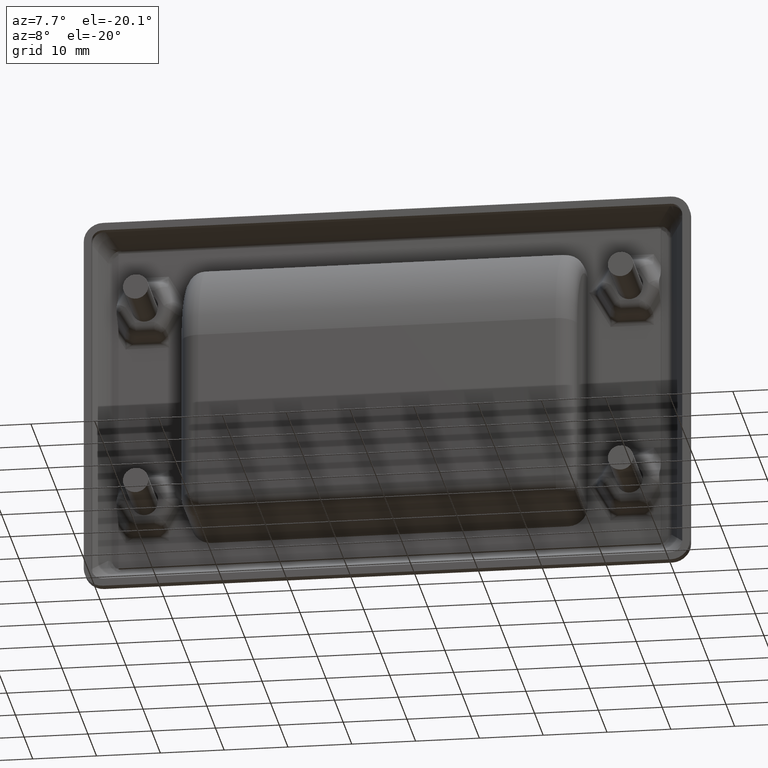
[diagram: clean part render]
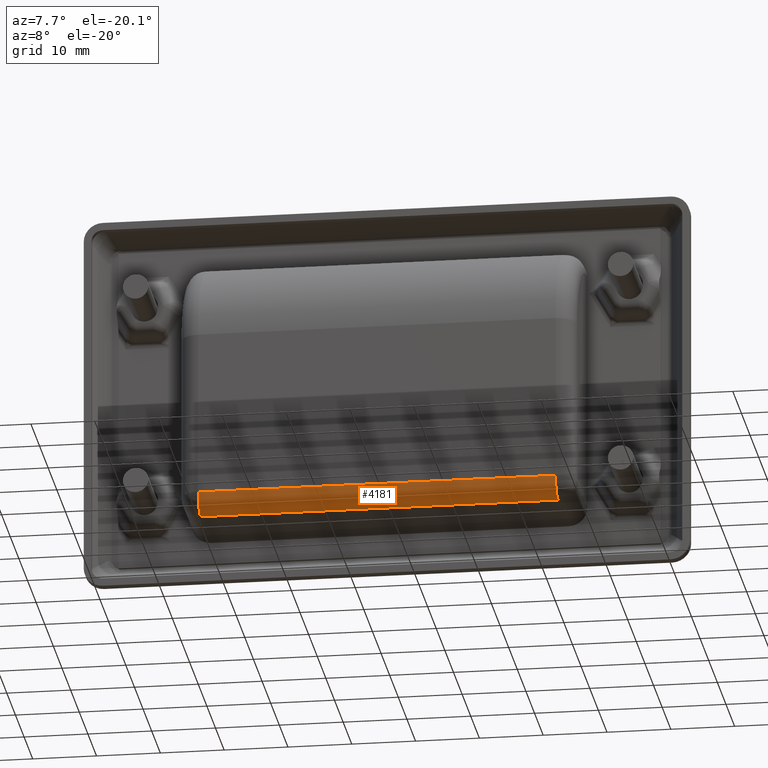
[diagram: same view with one face highlighted and labeled with its STEP entity id]
A machine part, auxiliary view. The second image highlights one B-rep face of the part: STEP entity #4181.
In plain terms, the highlighted cylindrical surface (edge-blend (fillet) strip) has radius 3 mm, axis along (1, -0, 0).
Its self-contained STEP definition (entity closure, byte-faithful):
#492=LINE('',#8274,#807);
#503=LINE('',#8308,#818);
#807=VECTOR('',#5886,56.);
#818=VECTOR('',#5931,56.);
#1190=FACE_OUTER_BOUND('',#1481,.T.);
#1481=EDGE_LOOP('',(#3787,#3788,#3789,#3790));
#1657=CIRCLE('',#4639,3.);
#1665=CIRCLE('',#4654,3.);
#1996=VERTEX_POINT('',#8240);
#2000=VERTEX_POINT('',#8249);
#2007=VERTEX_POINT('',#8273);
#2011=VERTEX_POINT('',#8287);
#2585=EDGE_CURVE('',#1996,#2000,#1657,.T.);
#2590=EDGE_CURVE('',#2000,#2007,#492,.T.);
#2601=EDGE_CURVE('',#2007,#2011,#1665,.T.);
#2608=EDGE_CURVE('',#1996,#2011,#503,.T.);
#3787=ORIENTED_EDGE('',*,*,#2585,.F.);
#3788=ORIENTED_EDGE('',*,*,#2608,.T.);
#3789=ORIENTED_EDGE('',*,*,#2601,.F.);
#3790=ORIENTED_EDGE('',*,*,#2590,.F.);
#3917=CYLINDRICAL_SURFACE('',#4661,3.);
#4181=ADVANCED_FACE('',(#1190),#3917,.T.);
#4639=AXIS2_PLACEMENT_3D('',#8263,#5873,#5874);
#4654=AXIS2_PLACEMENT_3D('',#8295,#5911,#5912);
#4661=AXIS2_PLACEMENT_3D('',#8309,#5932,#5933);
#5873=DIRECTION('center_axis',(-1.,0.,0.));
#5874=DIRECTION('ref_axis',(0.,0.,1.));
#5886=DIRECTION('',(1.,0.,0.));
#5911=DIRECTION('center_axis',(1.,0.,0.));
#5912=DIRECTION('ref_axis',(0.,0.,1.));
#5931=DIRECTION('',(1.,0.,0.));
#5932=DIRECTION('center_axis',(1.,0.,0.));
#5933=DIRECTION('ref_axis',(0.,0.,1.));
#8240=CARTESIAN_POINT('',(-28.,-22.,12.5));
#8249=CARTESIAN_POINT('',(-28.,-19.,15.5));
#8263=CARTESIAN_POINT('Origin',(-28.,-19.,12.5));
#8273=CARTESIAN_POINT('',(28.,-19.,15.5));
#8274=CARTESIAN_POINT('',(0.,-19.,15.5));
#8287=CARTESIAN_POINT('',(28.,-22.,12.5));
#8295=CARTESIAN_POINT('Origin',(28.,-19.,12.5));
#8308=CARTESIAN_POINT('',(0.,-22.,12.5));
#8309=CARTESIAN_POINT('Origin',(0.,-19.,12.5));